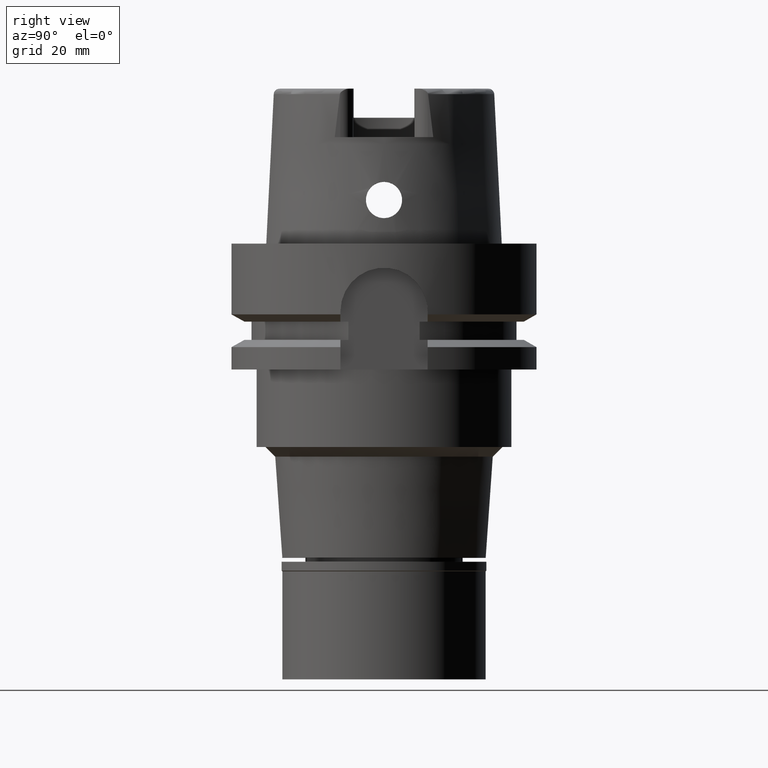
[diagram: clean part render]
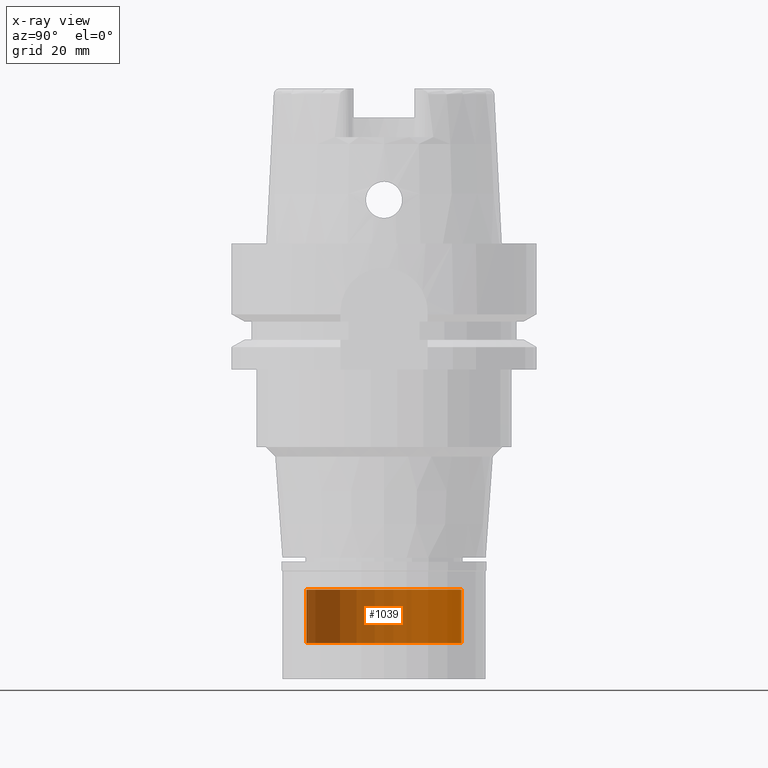
[diagram: x-ray — body ghosted, one internal face saturated and labeled with its STEP entity id]
A machine part, right view, then the same camera in x-ray: the body is ghosted and one INTERNAL B-rep face — a face not visible from any outside direction — is saturated and labeled: STEP entity #1039.
In plain terms, the highlighted cylindrical surface (partial cylindrical patch) has radius 16 mm, axis along (0, 0, 1).
Its self-contained STEP definition (entity closure, byte-faithful):
#98 = DIRECTION ( 'NONE',  ( 0.0000000000000000000, 0.0000000000000000000, 1.000000000000000000 ) ) ;
#125 = LINE ( 'NONE', #1403, #1324 ) ;
#157 = EDGE_CURVE ( 'NONE', #1036, #5271, #440, .T. ) ;
#440 = CIRCLE ( 'NONE', #618, 16.00000000000000000 ) ;
#454 = EDGE_LOOP ( 'NONE', ( #677, #3870, #800, #4609 ) ) ;
#565 = CARTESIAN_POINT ( 'NONE',  ( 0.0000000000000000000, -16.00000000000000000, -82.50000000000000000 ) ) ;
#618 = AXIS2_PLACEMENT_3D ( 'NONE', #1790, #5354, #1448 ) ;
#677 = ORIENTED_EDGE ( 'NONE', *, *, #157, .T. ) ;
#800 = ORIENTED_EDGE ( 'NONE', *, *, #4807, .T. ) ;
#944 = DIRECTION ( 'NONE',  ( 0.0000000000000000000, 0.0000000000000000000, -1.000000000000000000 ) ) ;
#960 = CARTESIAN_POINT ( 'NONE',  ( 0.0000000000000000000, 16.00000000000000000, -82.50000000000000000 ) ) ;
#1036 = VERTEX_POINT ( 'NONE', #960 ) ;
#1039 = ADVANCED_FACE ( 'NONE', ( #2260 ), #2178, .T. ) ;
#1092 = CARTESIAN_POINT ( 'NONE',  ( 0.0000000000000000000, 0.0000000000000000000, -71.50000000000000000 ) ) ;
#1324 = VECTOR ( 'NONE', #4396, 1000.000000000000000 ) ;
#1403 = CARTESIAN_POINT ( 'NONE',  ( 0.0000000000000000000, 16.00000000000000000, -71.50000000000000000 ) ) ;
#1448 = DIRECTION ( 'NONE',  ( 0.0000000000000000000, 1.000000000000000000, 0.0000000000000000000 ) ) ;
#1790 = CARTESIAN_POINT ( 'NONE',  ( 0.0000000000000000000, 0.0000000000000000000, -82.50000000000000000 ) ) ;
#1833 = DIRECTION ( 'NONE',  ( 0.0000000000000000000, 1.000000000000000000, 0.0000000000000000000 ) ) ;
#2093 = VERTEX_POINT ( 'NONE', #5152 ) ;
#2178 = CYLINDRICAL_SURFACE ( 'NONE', #5423, 16.00000000000000000 ) ;
#2260 = FACE_OUTER_BOUND ( 'NONE', #454, .T. ) ;
#2661 = CIRCLE ( 'NONE', #4118, 16.00000000000000000 ) ;
#2818 = DIRECTION ( 'NONE',  ( 0.0000000000000000000, -1.000000000000000000, 0.0000000000000000000 ) ) ;
#3132 = CARTESIAN_POINT ( 'NONE',  ( 0.0000000000000000000, 0.0000000000000000000, 0.0000000000000000000 ) ) ;
#3316 = DIRECTION ( 'NONE',  ( 0.0000000000000000000, 0.0000000000000000000, -1.000000000000000000 ) ) ;
#3374 = VECTOR ( 'NONE', #944, 1000.000000000000000 ) ;
#3517 = EDGE_CURVE ( 'NONE', #4254, #1036, #125, .T. ) ;
#3650 = CARTESIAN_POINT ( 'NONE',  ( 0.0000000000000000000, 16.00000000000000000, -71.50000000000000000 ) ) ;
#3870 = ORIENTED_EDGE ( 'NONE', *, *, #5214, .F. ) ;
#4118 = AXIS2_PLACEMENT_3D ( 'NONE', #1092, #3316, #2818 ) ;
#4254 = VERTEX_POINT ( 'NONE', #3650 ) ;
#4396 = DIRECTION ( 'NONE',  ( 0.0000000000000000000, 0.0000000000000000000, -1.000000000000000000 ) ) ;
#4472 = LINE ( 'NONE', #4797, #3374 ) ;
#4609 = ORIENTED_EDGE ( 'NONE', *, *, #3517, .T. ) ;
#4797 = CARTESIAN_POINT ( 'NONE',  ( 0.0000000000000000000, -16.00000000000000000, -71.50000000000000000 ) ) ;
#4807 = EDGE_CURVE ( 'NONE', #2093, #4254, #2661, .T. ) ;
#5152 = CARTESIAN_POINT ( 'NONE',  ( 0.0000000000000000000, -16.00000000000000000, -71.50000000000000000 ) ) ;
#5214 = EDGE_CURVE ( 'NONE', #2093, #5271, #4472, .T. ) ;
#5271 = VERTEX_POINT ( 'NONE', #565 ) ;
#5354 = DIRECTION ( 'NONE',  ( 0.0000000000000000000, 0.0000000000000000000, 1.000000000000000000 ) ) ;
#5423 = AXIS2_PLACEMENT_3D ( 'NONE', #3132, #98, #1833 ) ;